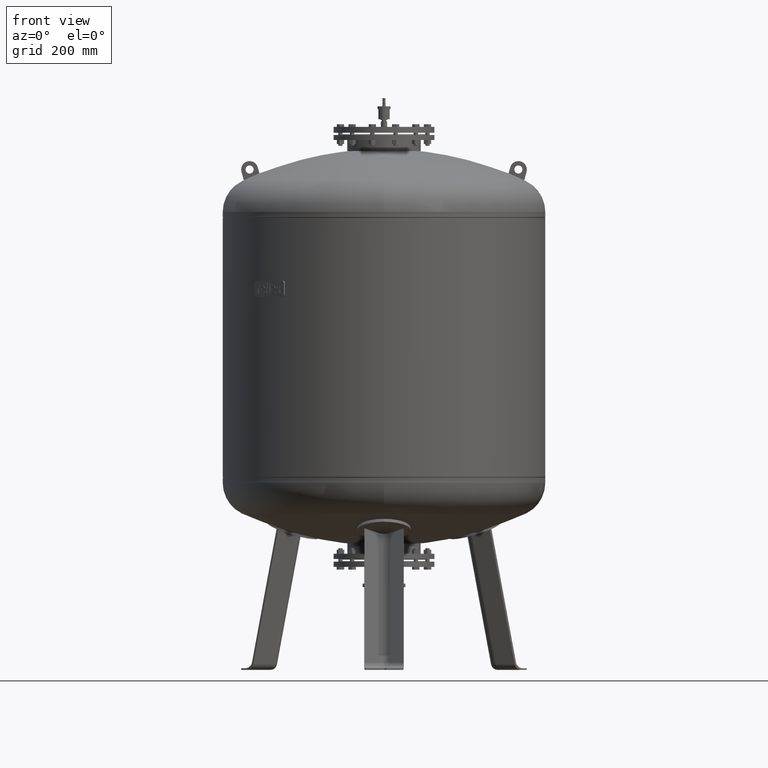
[diagram: clean part render]
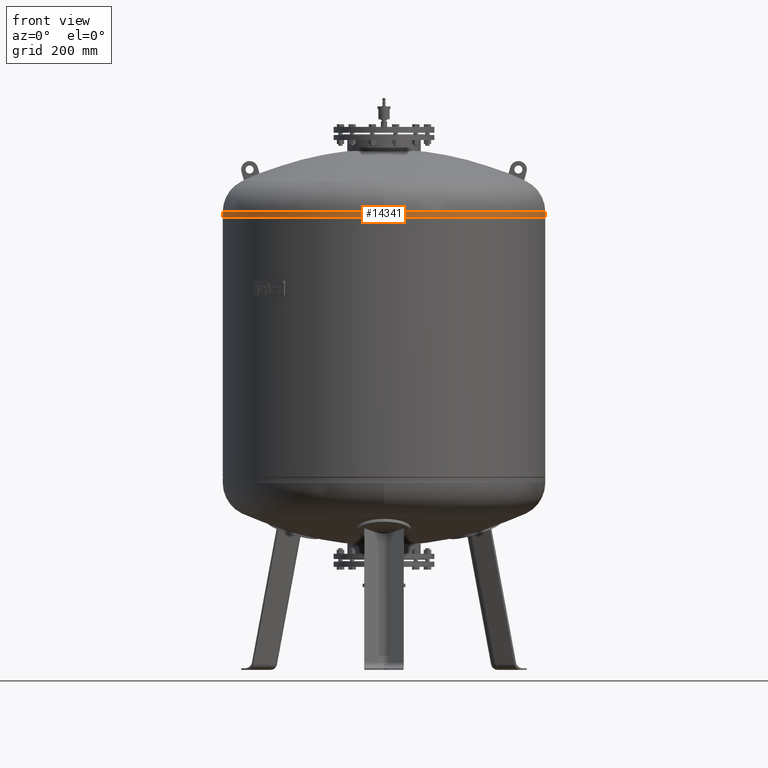
[diagram: same view with one face highlighted and labeled with its STEP entity id]
A machine part, front view. The second image highlights one B-rep face of the part: STEP entity #14341.
In plain terms, the highlighted cylindrical surface (partial cylindrical patch) has radius 600 mm, axis along (0, -0, -1).
Its self-contained STEP definition (entity closure, byte-faithful):
#13542=CARTESIAN_POINT('',(600.000000000000110,-4.684274E-014,1685.0));
#13543=VERTEX_POINT('',#13542);
#13544=CARTESIAN_POINT('',(600.0,-4.336858E-014,1703.912457433727700));
#13545=VERTEX_POINT('',#13544);
#13546=CARTESIAN_POINT('',(600.000000000000110,-4.684274E-014,1685.0));
#13547=DIRECTION('',(0.0,0.0,1.0));
#13548=VECTOR('',#13547,18.912457433727695);
#13549=LINE('',#13546,#13548);
#13550=EDGE_CURVE('',#13543,#13545,#13549,.T.);
#13552=CARTESIAN_POINT('',(-599.999999999999890,2.663364E-014,1685.0));
#13553=VERTEX_POINT('',#13552);
#13561=CARTESIAN_POINT('',(-599.999999999999890,3.010780E-014,1703.912457433727700));
#13562=VERTEX_POINT('',#13561);
#13563=CARTESIAN_POINT('',(-599.999999999999890,2.663364E-014,1685.0));
#13564=DIRECTION('',(0.0,0.0,1.0));
#13565=VECTOR('',#13564,18.912457433727695);
#13566=LINE('',#13563,#13565);
#13567=EDGE_CURVE('',#13553,#13562,#13566,.T.);
#13593=CARTESIAN_POINT('',(4.214189E-014,-600.0,1703.912457433727700));
#13594=VERTEX_POINT('',#13593);
#13604=CARTESIAN_POINT('',(6.604942E-015,-4.336858E-014,1703.912457433727700));
#13605=DIRECTION('',(0.0,0.0,-1.0));
#13606=DIRECTION('',(1.0,0.0,0.0));
#13607=AXIS2_PLACEMENT_3D('',#13604,#13605,#13606);
#13608=CIRCLE('',#13607,600.0);
#13609=EDGE_CURVE('',#13545,#13594,#13608,.T.);
#14313=CARTESIAN_POINT('',(6.604942E-015,-4.336858E-014,1703.912457433727700));
#14314=DIRECTION('',(0.0,0.0,-1.0));
#14315=DIRECTION('',(1.0,0.0,0.0));
#14316=AXIS2_PLACEMENT_3D('',#14313,#14314,#14315);
#14317=CIRCLE('',#14316,600.0);
#14318=EDGE_CURVE('',#13594,#13562,#14317,.T.);
#14323=CARTESIAN_POINT('',(6.869496E-015,-4.510566E-014,1694.456228716863700));
#14324=DIRECTION('',(2.797667E-017,-1.836970E-016,-1.0));
#14325=DIRECTION('',(1.0,0.0,0.0));
#14326=AXIS2_PLACEMENT_3D('',#14323,#14324,#14325);
#14327=CYLINDRICAL_SURFACE('',#14326,599.999999999999890);
#14328=ORIENTED_EDGE('',*,*,#13550,.T.);
#14329=ORIENTED_EDGE('',*,*,#13609,.T.);
#14330=ORIENTED_EDGE('',*,*,#14318,.T.);
#14331=ORIENTED_EDGE('',*,*,#13567,.F.);
#14332=CARTESIAN_POINT('',(7.134050E-015,-4.684274E-014,1685.0));
#14333=DIRECTION('',(0.0,0.0,-1.0));
#14334=DIRECTION('',(1.0,0.0,0.0));
#14335=AXIS2_PLACEMENT_3D('',#14332,#14333,#14334);
#14336=CIRCLE('',#14335,600.0);
#14337=EDGE_CURVE('',#13543,#13553,#14336,.T.);
#14338=ORIENTED_EDGE('',*,*,#14337,.F.);
#14339=EDGE_LOOP('',(#14328,#14329,#14330,#14331,#14338));
#14340=FACE_OUTER_BOUND('',#14339,.T.);
#14341=ADVANCED_FACE('',(#14340),#14327,.T.);